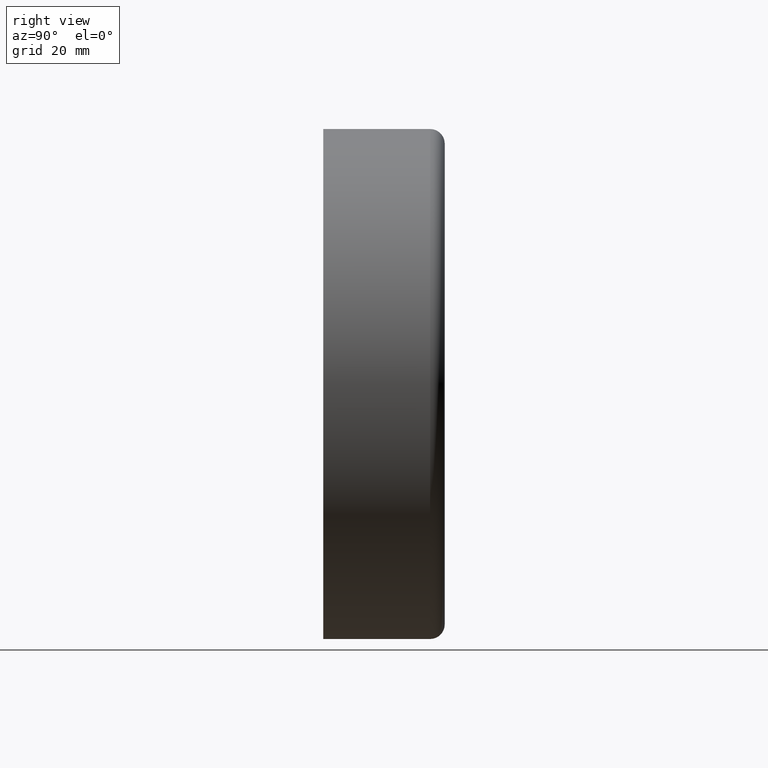
[diagram: clean part render]
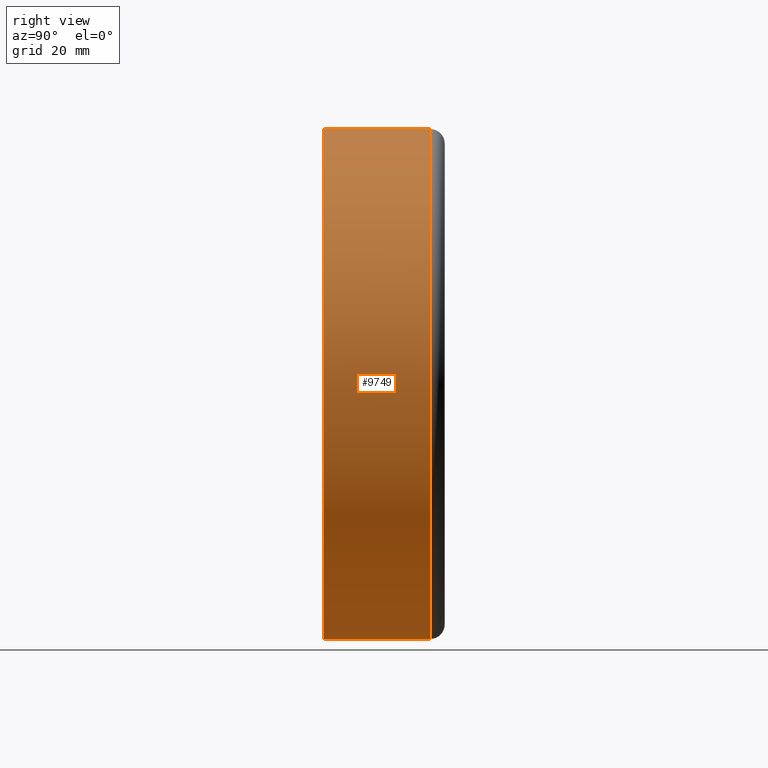
[diagram: same view with one face highlighted and labeled with its STEP entity id]
A machine part, right view. The second image highlights one B-rep face of the part: STEP entity #9749.
In plain terms, the highlighted cylindrical surface (partial cylindrical patch) has radius 52.5 mm, axis along (-0, -1, -0).
Its self-contained STEP definition (entity closure, byte-faithful):
#49 = EDGE_LOOP ( 'NONE', ( #14419, #6176, #5107, #8975 ) ) ;
#333 = EDGE_CURVE ( 'NONE', #1529, #910, #6921, .T. ) ;
#354 = VERTEX_POINT ( 'NONE', #4848 ) ;
#360 = CIRCLE ( 'NONE', #9219, 52.50000000000000711 ) ;
#371 = CARTESIAN_POINT ( 'NONE',  ( 6.429395695523604744E-15, 0.000000000000000000, 52.50000000000000711 ) ) ;
#411 = LINE ( 'NONE', #371, #11009 ) ;
#614 = DIRECTION ( 'NONE',  ( 0.000000000000000000, 0.000000000000000000, -1.000000000000000000 ) ) ;
#910 = VERTEX_POINT ( 'NONE', #12928 ) ;
#1492 = EDGE_CURVE ( 'NONE', #5353, #354, #360, .T. ) ;
#1529 = VERTEX_POINT ( 'NONE', #7813 ) ;
#1756 = CARTESIAN_POINT ( 'NONE',  ( 0.000000000000000000, 22.00000000000000355, -52.50000000000000711 ) ) ;
#2479 = DIRECTION ( 'NONE',  ( 0.000000000000000000, 0.000000000000000000, -1.000000000000000000 ) ) ;
#2873 = DIRECTION ( 'NONE',  ( 0.000000000000000000, 0.000000000000000000, -1.000000000000000000 ) ) ;
#3580 = FACE_OUTER_BOUND ( 'NONE', #49, .T. ) ;
#3673 = LINE ( 'NONE', #9167, #4437 ) ;
#3704 = EDGE_CURVE ( 'NONE', #5353, #1529, #3673, .T. ) ;
#4133 = DIRECTION ( 'NONE',  ( -0.000000000000000000, -1.000000000000000000, -0.000000000000000000 ) ) ;
#4437 = VECTOR ( 'NONE', #12180, 1000.000000000000000 ) ;
#4848 = CARTESIAN_POINT ( 'NONE',  ( 6.429395695523604744E-15, 22.00000000000000355, 52.50000000000000711 ) ) ;
#5107 = ORIENTED_EDGE ( 'NONE', *, *, #333, .F. ) ;
#5353 = VERTEX_POINT ( 'NONE', #1756 ) ;
#6176 = ORIENTED_EDGE ( 'NONE', *, *, #11172, .T. ) ;
#6921 = CIRCLE ( 'NONE', #7039, 52.50000000000000711 ) ;
#7039 = AXIS2_PLACEMENT_3D ( 'NONE', #9545, #8252, #2479 ) ;
#7813 = CARTESIAN_POINT ( 'NONE',  ( 0.000000000000000000, 0.000000000000000000, -52.50000000000000711 ) ) ;
#7907 = CARTESIAN_POINT ( 'NONE',  ( 0.000000000000000000, 0.000000000000000000, 0.000000000000000000 ) ) ;
#8252 = DIRECTION ( 'NONE',  ( -0.000000000000000000, -1.000000000000000000, -0.000000000000000000 ) ) ;
#8975 = ORIENTED_EDGE ( 'NONE', *, *, #3704, .F. ) ;
#8983 = DIRECTION ( 'NONE',  ( -0.000000000000000000, -1.000000000000000000, -0.000000000000000000 ) ) ;
#8996 = DIRECTION ( 'NONE',  ( -0.000000000000000000, -1.000000000000000000, -0.000000000000000000 ) ) ;
#9167 = CARTESIAN_POINT ( 'NONE',  ( 0.000000000000000000, 0.000000000000000000, -52.50000000000000711 ) ) ;
#9219 = AXIS2_PLACEMENT_3D ( 'NONE', #12459, #8996, #2873 ) ;
#9545 = CARTESIAN_POINT ( 'NONE',  ( 0.000000000000000000, 0.000000000000000000, 0.000000000000000000 ) ) ;
#9749 = ADVANCED_FACE ( 'NONE', ( #3580 ), #11796, .T. ) ;
#11009 = VECTOR ( 'NONE', #4133, 1000.000000000000000 ) ;
#11172 = EDGE_CURVE ( 'NONE', #354, #910, #411, .T. ) ;
#11796 = CYLINDRICAL_SURFACE ( 'NONE', #12690, 52.50000000000000711 ) ;
#12180 = DIRECTION ( 'NONE',  ( -0.000000000000000000, -1.000000000000000000, -0.000000000000000000 ) ) ;
#12459 = CARTESIAN_POINT ( 'NONE',  ( 0.000000000000000000, 22.00000000000000355, 0.000000000000000000 ) ) ;
#12690 = AXIS2_PLACEMENT_3D ( 'NONE', #7907, #8983, #614 ) ;
#12928 = CARTESIAN_POINT ( 'NONE',  ( 6.429395695523604744E-15, 0.000000000000000000, 52.50000000000000711 ) ) ;
#14419 = ORIENTED_EDGE ( 'NONE', *, *, #1492, .T. ) ;